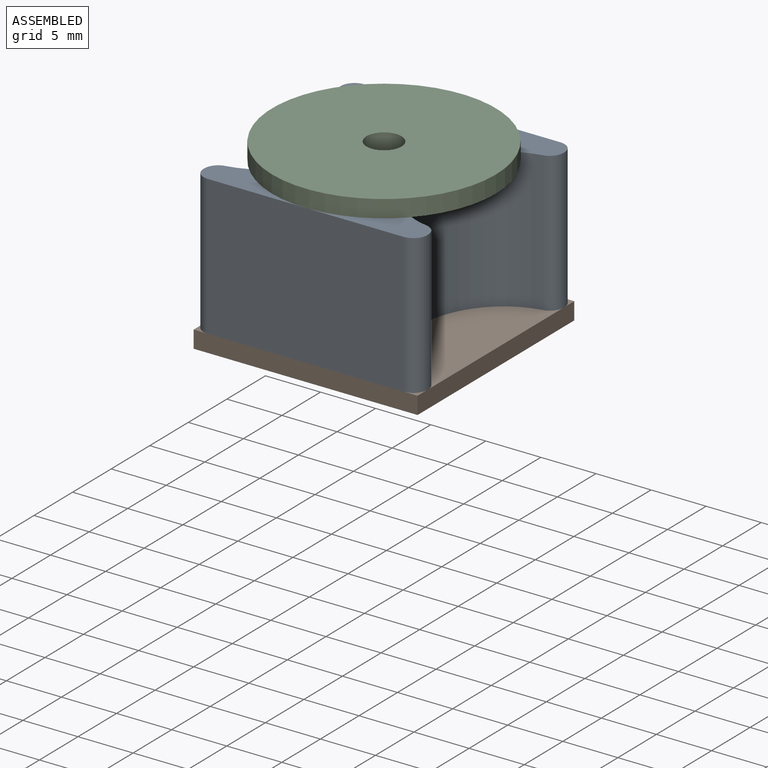
[diagram: assembled view]
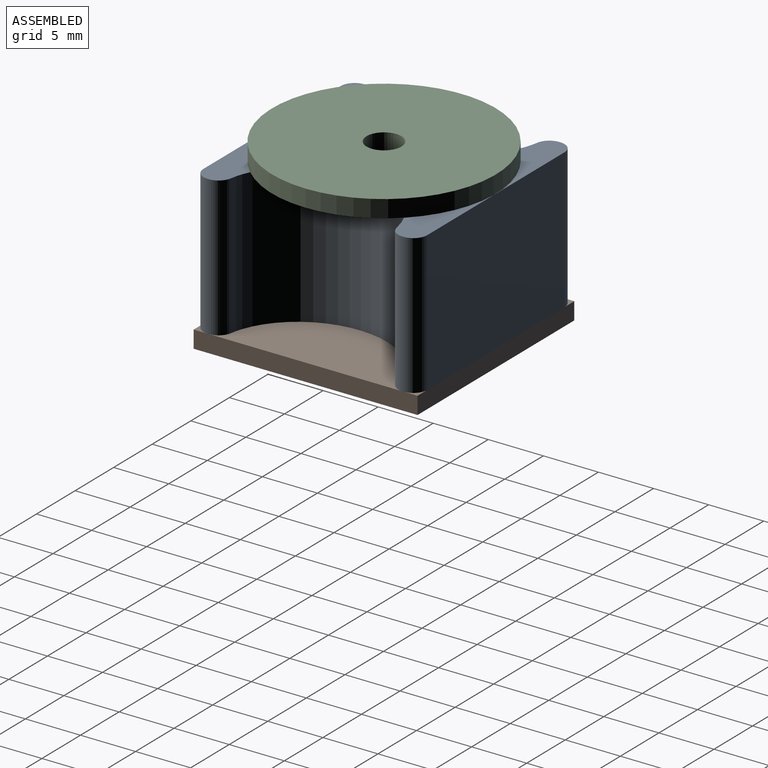
[diagram: assembled view, second angle]
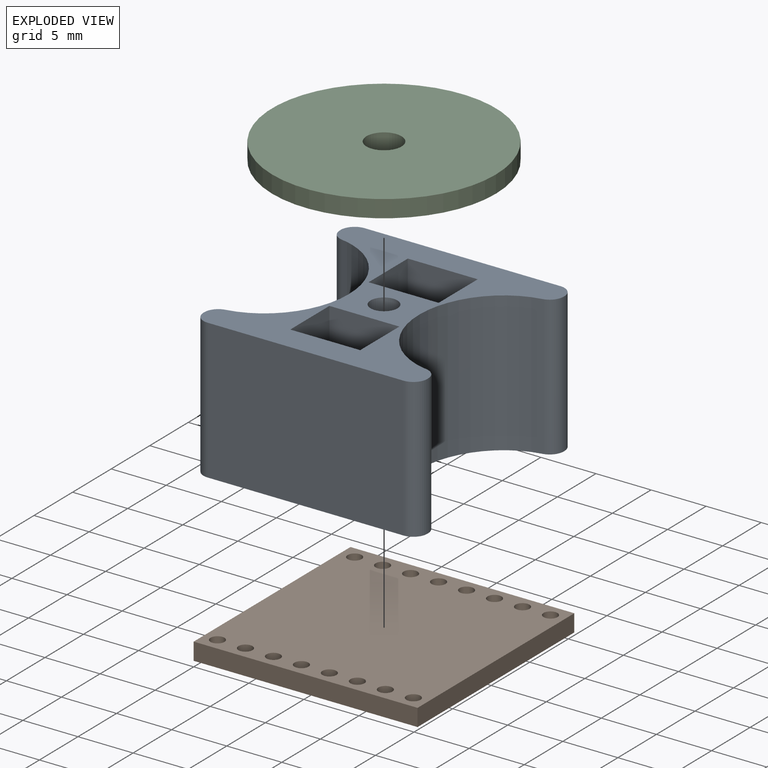
[diagram: exploded view]
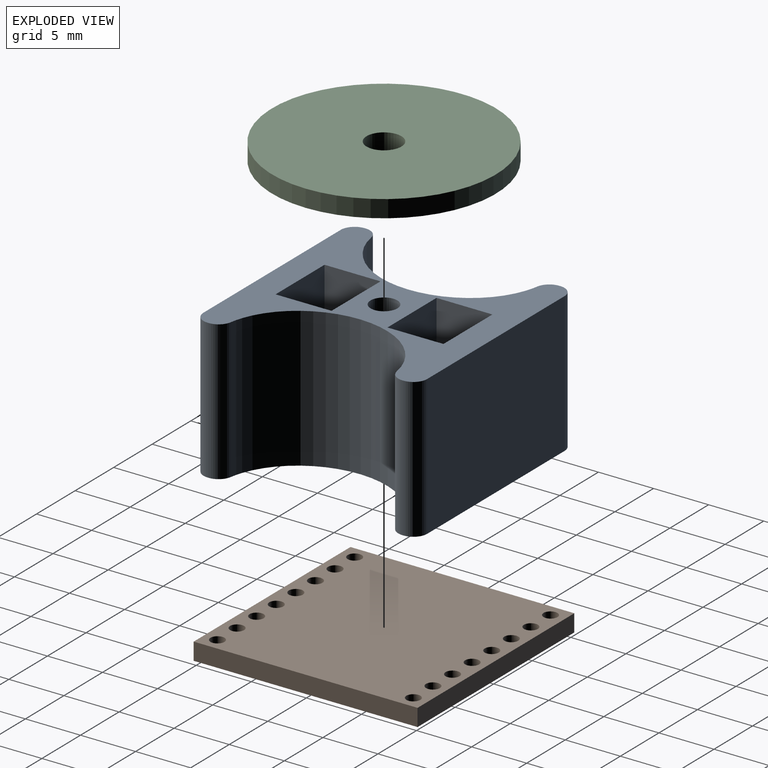
[diagram: exploded view, second angle]
ASSEMBLY  parts=3 mates=2
PART A: 27 faces, bbox 20.3x20.3x12.7 mm
  f0: plane 12.7x6.35mm, normal (0,1,0), area 80.6mm2, adj f1,f16,f17,f18
  f1: plane 12.7x5.08mm, normal (1,0,0), area 64.5mm2, adj f0,f2,f17,f18
  f2: plane 12.7x6.35mm, normal (0,-1,0), area 80.6mm2, adj f1,f16,f17,f18
  f3: plane 12.7x0.11mm, normal (-1,0,0), area 1.3mm2, adj f17,f18,f19,f26
  f4: plane 17.78x12.7mm, normal (0,-1,0), area 225.8mm2, adj f17,f18,f19,f20
  f5: plane 12.7x0.11mm, normal (1,0,0), area 1.3mm2, adj f17,f18,f20,f21
  f6: extruded ~15.06x12.7mm, area 264.4mm2, adj f17,f18,f21,f22
  f7: plane 12.7x0.11mm, normal (1,0,0), area 1.3mm2, adj f17,f18,f22,f23
  f8: plane 17.78x12.7mm, normal (0,1,0), area 225.8mm2, adj f17,f18,f23,f24
  f9: plane 12.7x0.11mm, normal (-1,0,0), area 1.3mm2, adj f17,f18,f24,f25
  f10: plane 12.7x5.08mm, normal (1,0,0), area 64.5mm2, adj f11,f15,f17,f18
  f11: plane 12.7x6.35mm, normal (0,-1,0), area 80.6mm2, adj f10,f12,f17,f18
  f12: plane 12.7x5.08mm, normal (-1,0,0), area 64.5mm2, adj f11,f15,f17,f18
  f13: cylinder r=1.22mm len=12.7mm, axis (0,0,-1), area 97.3mm2, adj f17,f18
  f14: extruded ~15.06x12.7mm, area 264.4mm2, adj f17,f18,f25,f26
  f15: plane 12.7x6.35mm, normal (0,1,0), area 80.6mm2, adj f10,f12,f17,f18
  f16: plane 12.7x5.08mm, normal (-1,0,0), area 64.5mm2, adj f0,f2,f17,f18
  f17: plane 20.32x20.32mm, normal (0,0,1), area 174.1mm2, adj f0,f1,f2,f3,f4,f5,f6,f7
  f18: plane 20.32x20.32mm, normal (0,0,-1), area 174.1mm2, adj f0,f1,f2,f3,f4,f5,f6,f7
  f19: cylinder r=1.27mm len=12.7mm, axis (0,0,1), area 25.3mm2, adj f3,f4,f17,f18
  f20: cylinder r=1.27mm len=12.7mm, axis (0,0,-1), area 25.3mm2, adj f4,f5,f17,f18
  f21: cylinder r=1.27mm len=12.7mm, axis (0,0,-1), area 22.7mm2, adj f5,f6,f17,f18
  f22: cylinder r=1.27mm len=12.7mm, axis (0,0,-1), area 22.7mm2, adj f6,f7,f17,f18
  f23: cylinder r=1.27mm len=12.7mm, axis (0,0,1), area 25.3mm2, adj f7,f8,f17,f18
  f24: cylinder r=1.27mm len=12.7mm, axis (0,0,-1), area 25.3mm2, adj f8,f9,f17,f18
  f25: cylinder r=1.27mm len=12.7mm, axis (0,0,-1), area 22.7mm2, adj f9,f14,f17,f18
  f26: cylinder r=1.27mm len=12.7mm, axis (0,0,-1), area 22.7mm2, adj f3,f14,f17,f18
PART B: 22 faces, bbox 20.3x20.3x1.6 mm
  f0: plane 20.32x1.57mm, normal (-1,0,0), area 32mm2, adj f1,f18,f20,f21
  f1: plane 20.32x1.57mm, normal (0,-1,0), area 32mm2, adj f0,f2,f20,f21
  f2: plane 20.32x1.57mm, normal (1,0,0), area 32mm2, adj f1,f18,f20,f21
  f3: cylinder r=0.64mm len=1.57mm, axis (0,0,-1), area 6.3mm2, adj f20,f21
  f4: cylinder r=0.64mm len=1.57mm, axis (0,0,-1), area 6.3mm2, adj f20,f21
  f5: cylinder r=0.64mm len=1.57mm, axis (0,0,-1), area 6.3mm2, adj f20,f21
  f6: cylinder r=0.64mm len=1.57mm, axis (0,0,-1), area 6.3mm2, adj f20,f21
  f7: cylinder r=0.64mm len=1.57mm, axis (0,0,-1), area 6.3mm2, adj f20,f21
  f8: cylinder r=0.64mm len=1.57mm, axis (0,0,-1), area 6.3mm2, adj f20,f21
  f9: cylinder r=0.64mm len=1.57mm, axis (0,0,-1), area 6.3mm2, adj f20,f21
  f10: cylinder r=0.64mm len=1.57mm, axis (0,0,-1), area 6.3mm2, adj f20,f21
  f11: cylinder r=0.64mm len=1.57mm, axis (0,0,-1), area 6.3mm2, adj f20,f21
  f12: cylinder r=0.64mm len=1.57mm, axis (0,0,-1), area 6.3mm2, adj f20,f21
  f13: cylinder r=0.64mm len=1.57mm, axis (0,0,-1), area 6.3mm2, adj f20,f21
  f14: cylinder r=0.64mm len=1.57mm, axis (0,0,-1), area 6.3mm2, adj f20,f21
  f15: cylinder r=0.64mm len=1.57mm, axis (0,0,-1), area 6.3mm2, adj f20,f21
  f16: cylinder r=0.64mm len=1.57mm, axis (0,0,-1), area 6.3mm2, adj f20,f21
  f17: cylinder r=0.64mm len=1.57mm, axis (0,0,-1), area 6.3mm2, adj f20,f21
  f18: plane 20.32x1.57mm, normal (0,1,0), area 32mm2, adj f0,f2,f20,f21
  f19: cylinder r=0.64mm len=1.57mm, axis (0,0,-1), area 6.3mm2, adj f20,f21
  f20: plane 20.32x20.32mm, normal (0,0,1), area 392.6mm2, adj f0,f1,f2,f3,f4,f5,f6,f7
  f21: plane 20.32x20.32mm, normal (0,0,-1), area 392.6mm2, adj f0,f1,f2,f3,f4,f5,f6,f7
PART C: 4 faces, bbox 20.3x20.3x1.6 mm
  f0: cylinder r=1.59mm len=3.18mm, axis (0,0,-1), area 15.7mm2, adj f2,f3
  f1: cylinder r=10.16mm len=20.32mm, axis (0,0,-1), area 100.5mm2, adj f2,f3
  f2: plane 20.32x20.32mm, normal (0,0,1), area 316.4mm2, adj f0,f1
  f3: plane 20.32x20.32mm, normal (0,0,-1), area 316.4mm2, adj f0,f1
PLACE A t=(0,0,1.57)mm
PLACE B at identity fixed
PLACE C rot(axis=(1,0,0),180deg) t=(10.16,10.16,15.85)mm
MATE parallel B.f20 <-> A.f18  axis (0,0,1) through (10.16,0,1.57)mm
MATE cylindrical C.f1 <-> A.f13  axis (0,0,-1) through (10.16,10.16,14.27)mm
